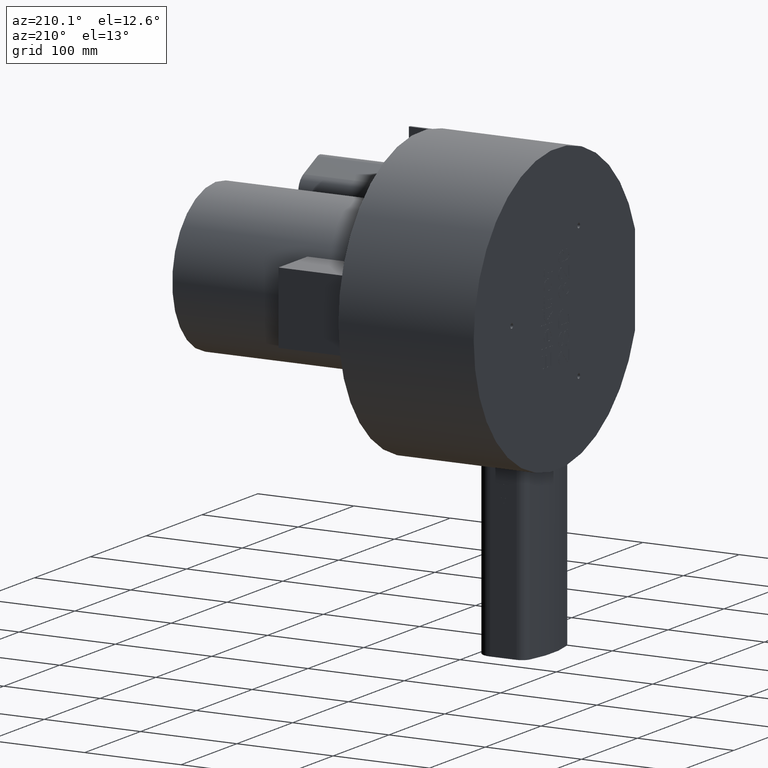
[diagram: clean part render]
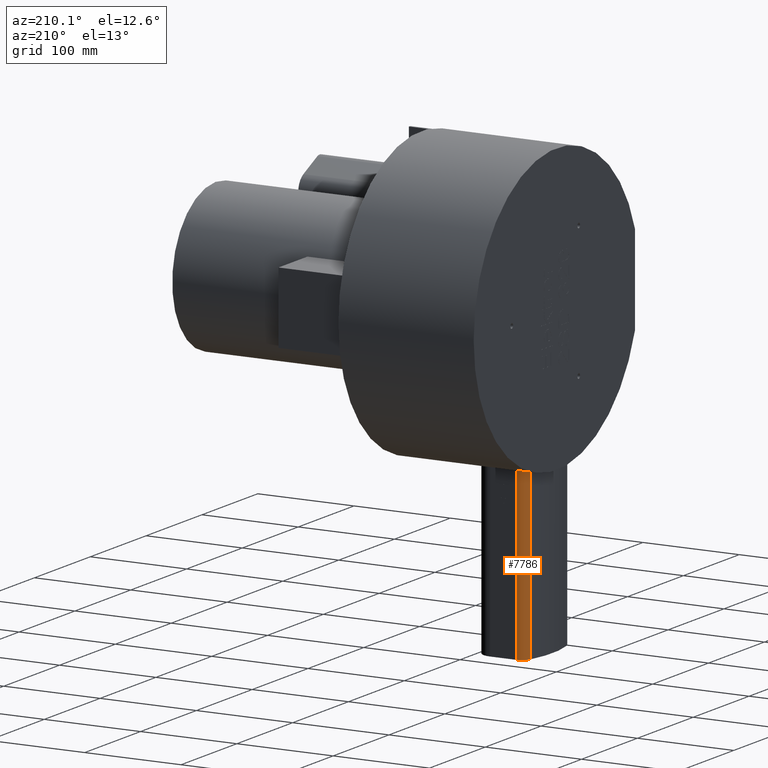
[diagram: same view with one face highlighted and labeled with its STEP entity id]
A machine part, auxiliary view. The second image highlights one B-rep face of the part: STEP entity #7786.
In plain terms, the highlighted cylindrical surface (edge-blend (fillet) strip) has radius 10 mm, axis along (0, 0, -1).
Its self-contained STEP definition (entity closure, byte-faithful):
#7714=CARTESIAN_POINT('',(23.963502751874461,6.129310344827587,-148.12323941467386));
#7715=VERTEX_POINT('',#7714);
#7729=CARTESIAN_POINT('',(23.963502751874461,6.129310344827587,-324.0));
#7730=VERTEX_POINT('',#7729);
#7731=CARTESIAN_POINT('',(23.963502751874461,6.129310344827587,-148.12323941467386));
#7732=DIRECTION('',(0.0,0.0,-1.0));
#7733=VECTOR('',#7732,175.87676058532614);
#7734=LINE('',#7731,#7733);
#7735=EDGE_CURVE('',#7715,#7730,#7734,.T.);
#7748=CARTESIAN_POINT('',(33.611649056247288,3.499999999999996,0.0));
#7749=DIRECTION('',(0.0,0.0,-1.0));
#7750=DIRECTION('',(0.0,-1.0,0.0));
#7751=AXIS2_PLACEMENT_3D('',#7748,#7749,#7750);
#7752=CYLINDRICAL_SURFACE('',#7751,10.0);
#7753=CARTESIAN_POINT('',(33.611649056247288,13.499999999999998,-147.63404925693803));
#7754=VERTEX_POINT('',#7753);
#7755=CARTESIAN_POINT('',(33.611649056247288,13.499999999999996,-147.63404925693803));
#7756=CARTESIAN_POINT('',(32.355555726120421,13.499999999999996,-147.63404925693803));
#7757=CARTESIAN_POINT('',(31.016185031535521,13.248872998659527,-147.65768538727517));
#7758=CARTESIAN_POINT('',(28.553093287386275,12.228572198109314,-147.74568254587089));
#7759=CARTESIAN_POINT('',(27.429323964983254,11.459435040606438,-147.80911477764519));
#7760=CARTESIAN_POINT('',(25.654062410145478,9.684924161416616,-147.93598843545414));
#7761=CARTESIAN_POINT('',(24.88425269737413,8.56074338289995,-148.00776242375574));
#7762=CARTESIAN_POINT('',(24.211527932445666,6.937586386013286,-148.08810136736665));
#7763=CARTESIAN_POINT('',(24.074307408164934,6.535903479487038,-148.10641467119504));
#7764=CARTESIAN_POINT('',(23.963502751874483,6.129310344827582,-148.12323941467386));
#7765=B_SPLINE_CURVE_WITH_KNOTS('',3,(#7755,#7756,#7757,#7758,#7759,#7760,#7761,#7762,#7763,#7764),.UNSPECIFIED.,.F.,.U.,(4,2,2,2,4),(0.0,0.376827999038062,0.753655998076124,1.130809791666008,1.250551516194277),.UNSPECIFIED.);
#7766=EDGE_CURVE('',#7754,#7715,#7765,.T.);
#7767=ORIENTED_EDGE('',*,*,#7766,.F.);
#7768=CARTESIAN_POINT('',(33.611649056247288,13.499999999999998,-324.0));
#7769=VERTEX_POINT('',#7768);
#7770=CARTESIAN_POINT('',(33.611649056247288,13.499999999999998,-147.63404925693803));
#7771=DIRECTION('',(0.0,0.0,-1.0));
#7772=VECTOR('',#7771,176.36595074306197);
#7773=LINE('',#7770,#7772);
#7774=EDGE_CURVE('',#7754,#7769,#7773,.T.);
#7775=ORIENTED_EDGE('',*,*,#7774,.T.);
#7776=CARTESIAN_POINT('',(33.611649056247288,3.499999999999996,-324.0));
#7777=DIRECTION('',(0.0,0.0,1.0));
#7778=DIRECTION('',(0.0,-1.0,0.0));
#7779=AXIS2_PLACEMENT_3D('',#7776,#7777,#7778);
#7780=CIRCLE('',#7779,10.0);
#7781=EDGE_CURVE('',#7769,#7730,#7780,.T.);
#7782=ORIENTED_EDGE('',*,*,#7781,.T.);
#7783=ORIENTED_EDGE('',*,*,#7735,.F.);
#7784=EDGE_LOOP('',(#7767,#7775,#7782,#7783));
#7785=FACE_OUTER_BOUND('',#7784,.T.);
#7786=ADVANCED_FACE('',(#7785),#7752,.T.);